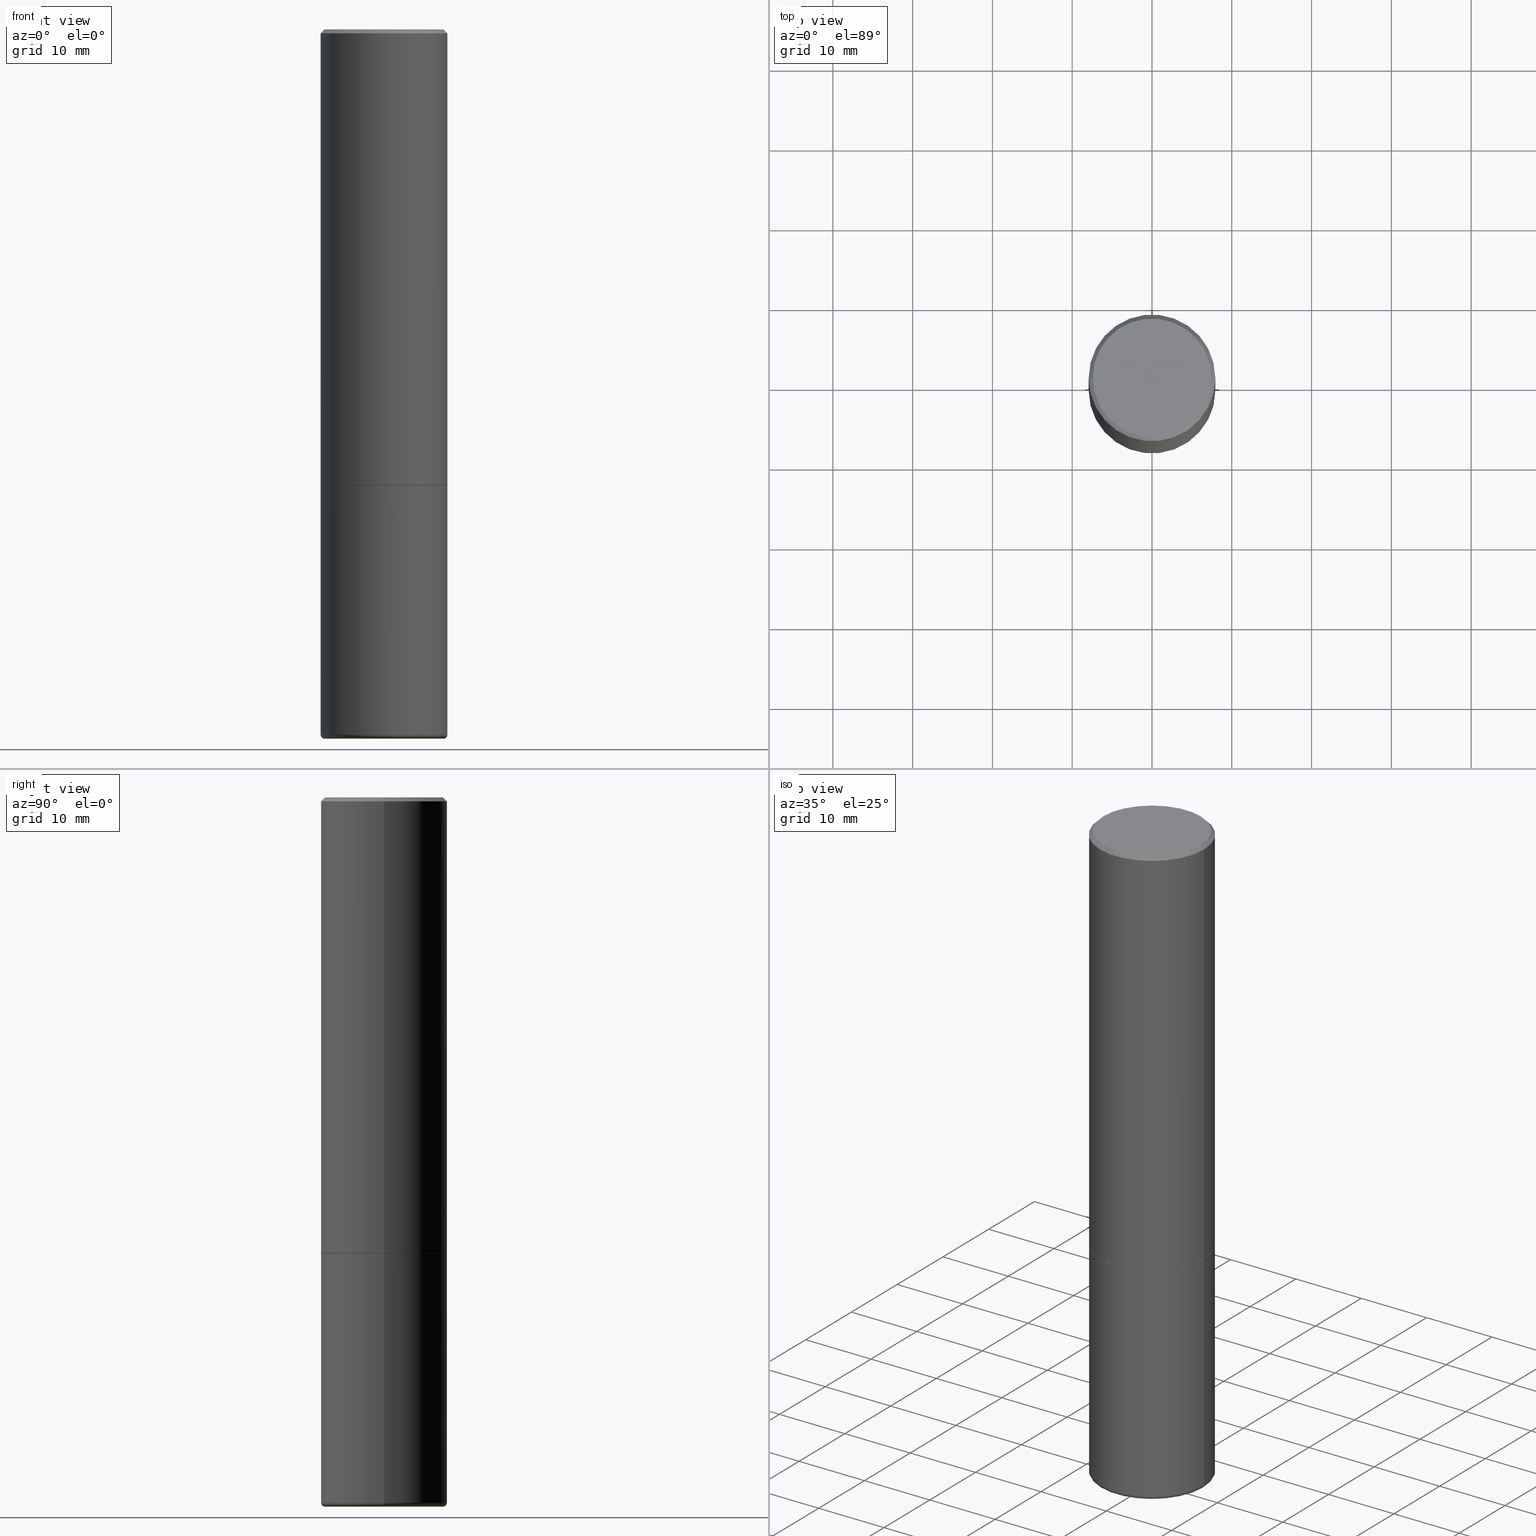
[diagram: canonical four-view strip — front | top / right | iso, engineering-drawing reading convention]
A machine part, canonical four-view strip (front | top / right | iso — engineering-drawing reading convention). The complete STEP part file that produces these views, byte-faithful:
ISO-10303-21;
HEADER;
FILE_DESCRIPTION (( 'STEP AP203' ),
    '1' );
FILE_NAME ('38138.STEP',
    '2023-03-22T20:22:44',
    ( '' ),
    ( '' ),
    'SwSTEP 2.0',
    'SolidWorks 2022',
    '' );
FILE_SCHEMA (( 'CONFIG_CONTROL_DESIGN' ));
ENDSEC;

DATA;
#1 = DIRECTION ( 'NONE',  ( 1.000000000000000000, -6.982962677686265133E-15, 0.000000000000000000 ) ) ;
#2 = CIRCLE ( 'NONE', #252, 0.3124999999999998335 ) ;
#3 = COORDINATED_UNIVERSAL_TIME_OFFSET ( 5, 0, .BEHIND. ) ;
#4 = ORIENTED_EDGE ( 'NONE', *, *, #427, .T. ) ;
#5 = CARTESIAN_POINT ( 'NONE',  ( -0.2924999999999998157, 2.077431396611662611E-15, 4.268512490086005323E-18 ) ) ;
#6 = DIRECTION ( 'NONE',  ( 1.000000000000000000, -6.982962677686265922E-15, 0.000000000000000000 ) ) ;
#7 = ORIENTED_EDGE ( 'NONE', *, *, #155, .T. ) ;
#8 = DIRECTION ( 'NONE',  ( -2.445468806185136597E-29, 3.491481338843145583E-15, 1.000000000000000000 ) ) ;
#9 = APPLICATION_PROTOCOL_DEFINITION ( 'international standard', 'config_control_design', 1994, #253 ) ;
#10 = EDGE_LOOP ( 'NONE', ( #144, #235, #342, #345 ) ) ;
#11 = ORIENTED_EDGE ( 'NONE', *, *, #48, .F. ) ;
#12 = DIRECTION ( 'NONE',  ( 1.000000000000000000, -6.982962677686265133E-15, 0.000000000000000000 ) ) ;
#13 = CLOSED_SHELL ( 'NONE', ( #295, #333, #381, #418, #366, #79, #195 ) ) ;
#14 = AXIS2_PLACEMENT_3D ( 'NONE', #222, #301, #438 ) ;
#15 = PERSON_AND_ORGANIZATION_ROLE ( 'classification_officer' ) ;
#16 = LINE ( 'NONE', #78, #64 ) ;
#17 = CARTESIAN_POINT ( 'NONE',  ( 0.3125000000000000000, -1.003800884917403364E-14, -2.249999999999999556 ) ) ;
#18 = EDGE_CURVE ( 'NONE', #414, #67, #16, .T. ) ;
#19 = CC_DESIGN_APPROVAL ( #299, ( #247 ) ) ;
#20 = EDGE_LOOP ( 'NONE', ( #237, #208, #104, #359 ) ) ;
#21 = DATE_AND_TIME ( #217, #196 ) ;
#22 = AXIS2_PLACEMENT_3D ( 'NONE', #197, #89, #226 ) ;
#23 = APPROVAL_DATE_TIME ( #327, #299 ) ;
#24 = DIRECTION ( 'NONE',  ( 1.000000000000000000, -6.982962677686266711E-15, 0.000000000000000000 ) ) ;
#25 = DIRECTION ( 'NONE',  ( -2.445468806185136597E-29, 3.491481338843145583E-15, 1.000000000000000000 ) ) ;
#26 = CARTESIAN_POINT ( 'NONE',  ( 0.000000000000000000, 0.000000000000000000, 0.000000000000000000 ) ) ;
#27 = AXIS2_PLACEMENT_3D ( 'NONE', #401, #263, #192 ) ;
#28 = CARTESIAN_POINT ( 'NONE',  ( 0.3114999999999999991, -1.003102588649634920E-14, -2.249999999999999556 ) ) ;
#29 = CYLINDRICAL_SURFACE ( 'NONE', #59, 0.3124999999999998890 ) ;
#30 = FACE_OUTER_BOUND ( 'NONE', #65, .T. ) ;
#31 = CLOSED_SHELL ( 'NONE', ( #122, #315, #40, #290, #395, #101, #52, #375 ) ) ;
#32 = AXIS2_PLACEMENT_3D ( 'NONE', #80, #360, #60 ) ;
#33 = MECHANICAL_CONTEXT ( 'NONE', #253, 'mechanical' ) ;
#34 = DIRECTION ( 'NONE',  ( 0.000000000000000000, 0.000000000000000000, 1.000000000000000000 ) ) ;
#35 = EDGE_LOOP ( 'NONE', ( #347, #7, #75, #212 ) ) ;
#36 = DIRECTION ( 'NONE',  ( -1.000000000000000000, 6.982962677686265133E-15, 0.000000000000000000 ) ) ;
#37 =( CONVERSION_BASED_UNIT ( 'INCH', #231 ) LENGTH_UNIT ( ) NAMED_UNIT ( #270 ) );
#38 = EDGE_LOOP ( 'NONE', ( #230, #421, #100, #390 ) ) ;
#39 = VECTOR ( 'NONE', #368, 39.37007874015748143 ) ;
#40 = ADVANCED_FACE ( 'NONE', ( #279 ), #278, .T. ) ;
#41 = PLANE ( 'NONE',  #405 ) ;
#42 = PERSON ( 'UNSPECIFIED', 'UNSPECIFIED', 'UNSPECIFIED', ('UNSPECIFIED'), ('UNSPECIFIED'), ('UNSPECIFIED') ) ;
#43 = ORIENTED_EDGE ( 'NONE', *, *, #409, .F. ) ;
#44 = CARTESIAN_POINT ( 'NONE',  ( 0.3125000000000000000, -1.003451736783519063E-14, -2.248999999999999222 ) ) ;
#45 = VERTEX_POINT ( 'NONE', #168 ) ;
#46 = DIRECTION ( 'NONE',  ( 1.000000000000000000, -6.982962677686269077E-15, 0.000000000000000000 ) ) ;
#47 = DIRECTION ( 'NONE',  ( -2.445468806185136877E-29, 3.491481338843145188E-15, 1.000000000000000000 ) ) ;
#48 = EDGE_CURVE ( 'NONE', #440, #241, #97, .T. ) ;
#49 = LINE ( 'NONE', #189, #183 ) ;
#50 = CONICAL_SURFACE ( 'NONE', #84, 751.2258538476803551, 1.518436449235074592 ) ;
#51 = PERSON_AND_ORGANIZATION_ROLE ( 'design_supplier' ) ;
#52 = ADVANCED_FACE ( 'NONE', ( #349 ), #136, .F. ) ;
#53 = AXIS2_PLACEMENT_3D ( 'NONE', #154, #215, #46 ) ;
#54 = DIRECTION ( 'NONE',  ( -2.445468806185136597E-29, 3.491481338843145583E-15, 1.000000000000000000 ) ) ;
#55 = UNCERTAINTY_MEASURE_WITH_UNIT (LENGTH_MEASURE( 1.000000000000000082E-05 ), #37, 'distance_accuracy_value', 'NONE');
#56 = DIRECTION ( 'NONE',  ( -0.7071067811864267805, 7.493145998869918709E-15, 0.7071067811866682540 ) ) ;
#57 = CARTESIAN_POINT ( 'NONE',  ( 8.510298474124427942E-29, -1.215045075825074504E-14, -3.480027409304908392 ) ) ;
#58 = DIRECTION ( 'NONE',  ( -2.445468806185136597E-29, 3.491481338843145583E-15, 1.000000000000000000 ) ) ;
#59 = AXIS2_PLACEMENT_3D ( 'NONE', #161, #406, #373 ) ;
#60 = DIRECTION ( 'NONE',  ( 1.000000000000000000, -6.982962677686236734E-15, 0.000000000000000000 ) ) ;
#61 = FACE_OUTER_BOUND ( 'NONE', #20, .T. ) ;
#62 = CARTESIAN_POINT ( 'NONE',  ( 0.3124999999999998890, -2.182175836776957558E-15, 1.523805242436229235E-29 ) ) ;
#63 = VERTEX_POINT ( 'NONE', #5 ) ;
#64 = VECTOR ( 'NONE', #47, 39.37007874015748143 ) ;
#65 = EDGE_LOOP ( 'NONE', ( #338, #107, #352, #275 ) ) ;
#66 = CIRCLE ( 'NONE', #135, 0.01999999999999971939 ) ;
#67 = VERTEX_POINT ( 'NONE', #91 ) ;
#68 = EDGE_LOOP ( 'NONE', ( #178, #383, #392, #174 ) ) ;
#69 = PRODUCT_DEFINITION ( 'UNKNOWN', '', #247, #93 ) ;
#70 = DIRECTION ( 'NONE',  ( -2.445468806185136597E-29, 3.491481338843145583E-15, 1.000000000000000000 ) ) ;
#71 = EDGE_CURVE ( 'NONE', #63, #72, #242, .T. ) ;
#72 = VERTEX_POINT ( 'NONE', #143 ) ;
#73 = CARTESIAN_POINT ( 'NONE',  ( 5.502304813916556222E-29, -7.855833012397076871E-15, -2.249999999999999556 ) ) ;
#74 = DIRECTION ( 'NONE',  ( 1.000000000000000000, 0.000000000000000000, 0.000000000000000000 ) ) ;
#75 = ORIENTED_EDGE ( 'NONE', *, *, #211, .F. ) ;
#76 = CARTESIAN_POINT ( 'NONE',  ( 5.502304813916556222E-29, -7.855833012397076871E-15, -2.249999999999999556 ) ) ;
#77 = CALENDAR_DATE ( 2023, 22, 3 ) ;
#78 = CARTESIAN_POINT ( 'NONE',  ( -0.3124999999999998890, 2.220446049250312292E-15, -1.537167215704657391E-29 ) ) ;
#79 = ADVANCED_FACE ( 'NONE', ( #179 ), #326, .T. ) ;
#80 = CARTESIAN_POINT ( 'NONE',  ( 0.2925000000000000377, -1.419296734147397679E-14, -3.480027409304908392 ) ) ;
#81 = CARTESIAN_POINT ( 'NONE',  ( -0.3124999999999998890, 2.220446049250312292E-15, -1.537167215704657391E-29 ) ) ;
#82 = AXIS2_PLACEMENT_3D ( 'NONE', #73, #105, #316 ) ;
#83 = APPROVAL_ROLE ( '' ) ;
#84 = AXIS2_PLACEMENT_3D ( 'NONE', #329, #244, #423 ) ;
#85 = VECTOR ( 'NONE', #213, 39.37007874015748854 ) ;
#86 = CARTESIAN_POINT ( 'NONE',  ( 8.510298474124427942E-29, -1.215045075825074504E-14, -3.480027409304908392 ) ) ;
#87 = DIRECTION ( 'NONE',  ( 7.105427357601001859E-15, 1.000000000000000000, -3.491481338843145583E-15 ) ) ;
#88 = CYLINDRICAL_SURFACE ( 'NONE', #281, 0.3124999999999998890 ) ;
#89 = DIRECTION ( 'NONE',  ( -2.445468806185136597E-29, 3.491481338843145583E-15, 1.000000000000000000 ) ) ;
#90 = CIRCLE ( 'NONE', #339, 0.2924999999999998157 ) ;
#91 = CARTESIAN_POINT ( 'NONE',  ( -0.3125000000000000000, -7.782695836073597873E-15, -2.249999999999999556 ) ) ;
#92 = DIRECTION ( 'NONE',  ( 1.000000000000000000, -6.982962677686269077E-15, 0.000000000000000000 ) ) ;
#93 = DESIGN_CONTEXT ( 'detailed design', #330, 'design' ) ;
#94 = FACE_OUTER_BOUND ( 'NONE', #35, .T. ) ;
#95 = DIRECTION ( 'NONE',  ( 1.000000000000000000, -6.982962677686266711E-15, 4.876067333457692840E-29 ) ) ;
#96 = ORIENTED_EDGE ( 'NONE', *, *, #283, .T. ) ;
#97 = CIRCLE ( 'NONE', #280, 0.2914532808751413295 ) ;
#98 = DIRECTION ( 'NONE',  ( -2.445468806185136597E-29, 3.491481338843145583E-15, 1.000000000000000000 ) ) ;
#99 = ORIENTED_EDGE ( 'NONE', *, *, #224, .T. ) ;
#100 = ORIENTED_EDGE ( 'NONE', *, *, #71, .T. ) ;
#101 = ADVANCED_FACE ( 'NONE', ( #246 ), #220, .T. ) ;
#102 = CARTESIAN_POINT ( 'NONE',  ( 5.502304813916556222E-29, -7.855833012397076871E-15, -2.249999999999999556 ) ) ;
#103 =( NAMED_UNIT ( * ) SI_UNIT ( $, .STERADIAN. ) SOLID_ANGLE_UNIT ( ) );
#104 = ORIENTED_EDGE ( 'NONE', *, *, #224, .F. ) ;
#105 = DIRECTION ( 'NONE',  ( -2.445468806185136597E-29, 3.491481338843145583E-15, 1.000000000000000000 ) ) ;
#106 = CARTESIAN_POINT ( 'NONE',  ( -0.3124999999999997224, -7.782695836073599450E-15, -3.480027409304908392 ) ) ;
#107 = ORIENTED_EDGE ( 'NONE', *, *, #397, .T. ) ;
#108 = EDGE_LOOP ( 'NONE', ( #355, #96, #272, #303 ) ) ;
#109 = CARTESIAN_POINT ( 'NONE',  ( 0.2914532808751413295, -1.425539206859132982E-14, -3.499999999999999112 ) ) ;
#110 = AXIS2_PLACEMENT_3D ( 'NONE', #57, #25, #429 ) ;
#111 = EDGE_CURVE ( 'NONE', #382, #440, #191, .T. ) ;
#112 = PERSON_AND_ORGANIZATION ( #42, #400 ) ;
#113 = VERTEX_POINT ( 'NONE', #384 ) ;
#114 = DIRECTION ( 'NONE',  ( 1.000000000000000000, -6.982962677686265922E-15, 0.000000000000000000 ) ) ;
#115 = CC_DESIGN_APPROVAL ( #314, ( #164 ) ) ;
#116 = CARTESIAN_POINT ( 'NONE',  ( 5.502304813916556222E-29, -7.855833012397075293E-15, -2.249999999999999556 ) ) ;
#117 = CC_DESIGN_PERSON_AND_ORGANIZATION_ASSIGNMENT ( #112, #389, ( #69 ) ) ;
#118 = CONICAL_SURFACE ( 'NONE', #82, 0.3114999999999999991, 0.7853981633972775267 ) ;
#119 = COORDINATED_UNIVERSAL_TIME_OFFSET ( 5, 0, .BEHIND. ) ;
#120 = PRODUCT_DEFINITION_SHAPE ( 'NONE', 'NONE',  #69 ) ;
#121 = AXIS2_PLACEMENT_3D ( 'NONE', #433, #374, #36 ) ;
#122 = ADVANCED_FACE ( 'NONE', ( #393 ), #118, .T. ) ;
#123 = AXIS2_PLACEMENT_3D ( 'NONE', #116, #8, #399 ) ;
#124 = AXIS2_PLACEMENT_3D ( 'NONE', #140, #204, #176 ) ;
#125 = DIRECTION ( 'NONE',  ( 2.445468806185136597E-29, -3.491481338843145583E-15, -1.000000000000000000 ) ) ;
#126 = FACE_OUTER_BOUND ( 'NONE', #38, .T. ) ;
#127 = FACE_OUTER_BOUND ( 'NONE', #243, .T. ) ;
#128 = DIRECTION ( 'NONE',  ( -2.445468806185136597E-29, 3.491481338843145583E-15, 1.000000000000000000 ) ) ;
#129 = AXIS2_PLACEMENT_3D ( 'NONE', #76, #182, #291 ) ;
#130 = EDGE_CURVE ( 'NONE', #177, #187, #420, .T. ) ;
#131 = CYLINDRICAL_SURFACE ( 'NONE', #146, 0.3124999999999998890 ) ;
#132 = CARTESIAN_POINT ( 'NONE',  ( 2.182175836777013173E-15, 0.3124999999999921729, -2.250000000000000444 ) ) ;
#133 = ORIENTED_EDGE ( 'NONE', *, *, #356, .F. ) ;
#134 =( LENGTH_UNIT ( ) NAMED_UNIT ( * ) SI_UNIT ( $, .METRE. ) );
#135 = AXIS2_PLACEMENT_3D ( 'NONE', #334, #87, #159 ) ;
#136 = PLANE ( 'NONE',  #157 ) ;
#137 = FACE_OUTER_BOUND ( 'NONE', #207, .T. ) ;
#138 = EDGE_LOOP ( 'NONE', ( #318, #408, #313 ) ) ;
#139 = DIRECTION ( 'NONE',  ( -2.445468806185136877E-29, 3.491481338843145188E-15, 1.000000000000000000 ) ) ;
#140 = CARTESIAN_POINT ( 'NONE',  ( 8.559140821647976968E-29, -1.222018468595100619E-14, -3.499999999999999112 ) ) ;
#141 = VERTEX_POINT ( 'NONE', #17 ) ;
#142 = ORIENTED_EDGE ( 'NONE', *, *, #165, .F. ) ;
#143 = CARTESIAN_POINT ( 'NONE',  ( -0.3124999999999998335, 2.112346210000093866E-15, -0.02000000000000001776 ) ) ;
#144 = ORIENTED_EDGE ( 'NONE', *, *, #404, .F. ) ;
#145 = FACE_OUTER_BOUND ( 'NONE', #138, .T. ) ;
#146 = AXIS2_PLACEMENT_3D ( 'NONE', #402, #229, #432 ) ;
#147 = CIRCLE ( 'NONE', #203, 0.2924999999999998157 ) ;
#148 = PERSON_AND_ORGANIZATION ( #42, #400 ) ;
#149 = DIRECTION ( 'NONE',  ( -2.445468806185136597E-29, 3.491481338843145583E-15, 1.000000000000000000 ) ) ;
#150 = ORIENTED_EDGE ( 'NONE', *, *, #435, .T. ) ;
#151 = EDGE_CURVE ( 'NONE', #67, #141, #201, .T. ) ;
#152 = APPROVAL_STATUS ( 'not_yet_approved' ) ;
#153 = PRODUCT ( '38138', '38138', '', ( #33 ) ) ;
#154 = CARTESIAN_POINT ( 'NONE',  ( 8.510298474124427942E-29, -1.215045075825074504E-14, -3.480027409304908392 ) ) ;
#155 = EDGE_CURVE ( 'NONE', #187, #72, #210, .T. ) ;
#156 = DIRECTION ( 'NONE',  ( 2.445468806185136597E-29, -3.491481338843145583E-15, -1.000000000000000000 ) ) ;
#157 = AXIS2_PLACEMENT_3D ( 'NONE', #102, #269, #172 ) ;
#158 = AXIS2_PLACEMENT_3D ( 'NONE', #336, #293, #92 ) ;
#159 = DIRECTION ( 'NONE',  ( -1.000000000000000000, 7.105427357601025525E-15, 0.000000000000000000 ) ) ;
#160 = DIRECTION ( 'NONE',  ( -1.000000000000000000, 6.982962677686266711E-15, 0.000000000000000000 ) ) ;
#161 = CARTESIAN_POINT ( 'NONE',  ( 0.000000000000000000, 0.000000000000000000, 0.000000000000000000 ) ) ;
#162 = DIRECTION ( 'NONE',  ( 1.000000000000000000, -6.982962677686266711E-15, 4.876067333457692840E-29 ) ) ;
#163 = DIRECTION ( 'NONE',  ( -1.000000000000000000, 6.982962677686265922E-15, -4.876176775795935793E-29 ) ) ;
#164 = SECURITY_CLASSIFICATION ( '', '', #358 ) ;
#165 = EDGE_CURVE ( 'NONE', #268, #113, #232, .T. ) ;
#166 = DIRECTION ( 'NONE',  ( -2.445468806185136597E-29, 3.491481338843145583E-15, 1.000000000000000000 ) ) ;
#167 = EDGE_LOOP ( 'NONE', ( #410, #150 ) ) ;
#168 = CARTESIAN_POINT ( 'NONE',  ( 0.2924999999999998157, -2.110215457714318748E-15, 4.268512490114932791E-18 ) ) ;
#169 = DIRECTION ( 'NONE',  ( 2.438088387897960049E-29, -3.491481338843145188E-15, -1.000000000000000000 ) ) ;
#170 = EDGE_LOOP ( 'NONE', ( #142, #43 ) ) ;
#171 = VECTOR ( 'NONE', #357, 39.37007874015748143 ) ;
#172 = DIRECTION ( 'NONE',  ( 1.000000000000000000, -6.982962677686265922E-15, 4.876176775795935793E-29 ) ) ;
#173 = COORDINATED_UNIVERSAL_TIME_OFFSET ( 5, 0, .BEHIND. ) ;
#174 = ORIENTED_EDGE ( 'NONE', *, *, #397, .F. ) ;
#175 = CARTESIAN_POINT ( 'NONE',  ( -0.3125000000000000000, -1.740639529667232739E-15, -2.248999999999999222 ) ) ;
#176 = DIRECTION ( 'NONE',  ( 1.000000000000000000, -6.982962677686265133E-15, 0.000000000000000000 ) ) ;
#177 = VERTEX_POINT ( 'NONE', #44 ) ;
#178 = ORIENTED_EDGE ( 'NONE', *, *, #239, .F. ) ;
#179 = FACE_OUTER_BOUND ( 'NONE', #10, .T. ) ;
#180 = LOCAL_TIME ( 16, 22, 44.00000000000000000, #173 ) ;
#181 = ORIENTED_EDGE ( 'NONE', *, *, #151, .T. ) ;
#182 = DIRECTION ( 'NONE',  ( -2.445468806185136597E-29, 3.491481338843145583E-15, 1.000000000000000000 ) ) ;
#183 = VECTOR ( 'NONE', #221, 39.37007874015748143 ) ;
#184 = ORIENTED_EDGE ( 'NONE', *, *, #190, .T. ) ;
#185 = MANIFOLD_SOLID_BREP ( 'Body-Move/Copy2[1]', #13 ) ;
#186 = EDGE_CURVE ( 'NONE', #268, #177, #49, .T. ) ;
#187 = VERTEX_POINT ( 'NONE', #175 ) ;
#188 = AXIS2_PLACEMENT_3D ( 'NONE', #332, #149, #12 ) ;
#189 = CARTESIAN_POINT ( 'NONE',  ( 0.3114999999999999991, -1.003102588649634920E-14, -2.249999999999999556 ) ) ;
#190 = EDGE_CURVE ( 'NONE', #382, #241, #285, .T. ) ;
#191 = LINE ( 'NONE', #428, #85 ) ;
#192 = DIRECTION ( 'NONE',  ( 1.000000000000000000, -6.982962677686269077E-15, 0.000000000000000000 ) ) ;
#193 = VECTOR ( 'NONE', #365, 39.37007874015748854 ) ;
#194 = LINE ( 'NONE', #434, #351 ) ;
#195 = ADVANCED_FACE ( 'NONE', ( #145 ), #50, .F. ) ;
#196 = LOCAL_TIME ( 16, 22, 44.00000000000000000, #398 ) ;
#197 = CARTESIAN_POINT ( 'NONE',  ( 4.890937612370276662E-31, -6.982962677686296539E-17, -0.02000000000000001776 ) ) ;
#198 = CARTESIAN_POINT ( 'NONE',  ( 4.890937612370276662E-31, -6.982962677686296539E-17, -0.02000000000000001776 ) ) ;
#199 = ORIENTED_EDGE ( 'NONE', *, *, #255, .F. ) ;
#200 = DIRECTION ( 'NONE',  ( -1.000000000000000000, 6.982962677686265133E-15, 0.000000000000000000 ) ) ;
#201 = CIRCLE ( 'NONE', #188, 0.3125000000000000000 ) ;
#202 = ORIENTED_EDGE ( 'NONE', *, *, #111, .F. ) ;
#203 = AXIS2_PLACEMENT_3D ( 'NONE', #302, #166, #95 ) ;
#204 = DIRECTION ( 'NONE',  ( -2.445468806185136597E-29, 3.491481338843145583E-15, 1.000000000000000000 ) ) ;
#205 = ORIENTED_EDGE ( 'NONE', *, *, #404, .T. ) ;
#206 = DATE_AND_TIME ( #77, #305 ) ;
#207 = EDGE_LOOP ( 'NONE', ( #99, #181 ) ) ;
#208 = ORIENTED_EDGE ( 'NONE', *, *, #18, .T. ) ;
#209 = APPROVAL_ROLE ( '' ) ;
#210 = LINE ( 'NONE', #81, #171 ) ;
#211 = EDGE_CURVE ( 'NONE', #265, #72, #2, .T. ) ;
#212 = ORIENTED_EDGE ( 'NONE', *, *, #325, .F. ) ;
#213 = DIRECTION ( 'NONE',  ( -0.9986295347545742773, 6.790662755453670044E-15, -0.05233595624293597981 ) ) ;
#214 = ORIENTED_EDGE ( 'NONE', *, *, #151, .F. ) ;
#215 = DIRECTION ( 'NONE',  ( -2.445468806185136597E-29, 3.491481338843145583E-15, 1.000000000000000000 ) ) ;
#216 = CIRCLE ( 'NONE', #27, 0.3125000000000000000 ) ;
#217 = CALENDAR_DATE ( 2023, 22, 3 ) ;
#218 = CC_DESIGN_DATE_AND_TIME_ASSIGNMENT ( #206, #346, ( #69 ) ) ;
#219 = CARTESIAN_POINT ( 'NONE',  ( 5.038680535193089963E-19, -1.216685433629869943E-14, -3.484725580784579169 ) ) ;
#220 = CONICAL_SURFACE ( 'NONE', #129, 0.3114999999999999991, 0.7853981633972775267 ) ;
#221 = DIRECTION ( 'NONE',  ( 0.7071067811864267805, -2.468850131080992517E-15, 0.7071067811866682540 ) ) ;
#222 = CARTESIAN_POINT ( 'NONE',  ( 0.000000000000000000, 0.000000000000000000, 0.000000000000000000 ) ) ;
#223 = CARTESIAN_POINT ( 'NONE',  ( -1.043851414335219820E-46, 1.490343170380447200E-32, 4.268512490100411279E-18 ) ) ;
#224 = EDGE_CURVE ( 'NONE', #141, #67, #425, .T. ) ;
#225 = AXIS2_PLACEMENT_3D ( 'NONE', #198, #125, #200 ) ;
#226 = DIRECTION ( 'NONE',  ( 1.000000000000000000, -6.982962677686266711E-15, 0.000000000000000000 ) ) ;
#227 = PRODUCT_RELATED_PRODUCT_CATEGORY ( 'detail', '', ( #153 ) ) ;
#228 = EDGE_CURVE ( 'NONE', #414, #308, #260, .T. ) ;
#229 = DIRECTION ( 'NONE',  ( -2.445468806185136597E-29, 3.491481338843145583E-15, 1.000000000000000000 ) ) ;
#230 = ORIENTED_EDGE ( 'NONE', *, *, #283, .F. ) ;
#231 = LENGTH_MEASURE_WITH_UNIT ( LENGTH_MEASURE( 0.02539999999999999897 ), #134 );
#232 = CIRCLE ( 'NONE', #307, 0.3114999999999999991 ) ;
#233 = COORDINATED_UNIVERSAL_TIME_OFFSET ( 5, 0, .BEHIND. ) ;
#234 = ORIENTED_EDGE ( 'NONE', *, *, #245, .T. ) ;
#235 = ORIENTED_EDGE ( 'NONE', *, *, #48, .T. ) ;
#236 = DATE_AND_TIME ( #412, #264 ) ;
#237 = ORIENTED_EDGE ( 'NONE', *, *, #356, .T. ) ;
#238 = DIRECTION ( 'NONE',  ( -2.445468806185136597E-29, 3.491481338843145583E-15, 1.000000000000000000 ) ) ;
#239 = EDGE_CURVE ( 'NONE', #113, #187, #276, .T. ) ;
#240 = EDGE_LOOP ( 'NONE', ( #372, #377, #234, #214 ) ) ;
#241 = VERTEX_POINT ( 'NONE', #109 ) ;
#242 = LINE ( 'NONE', #388, #193 ) ;
#243 = EDGE_LOOP ( 'NONE', ( #202, #184, #11 ) ) ;
#244 = DIRECTION ( 'NONE',  ( 2.445468806185136597E-29, -3.491481338843145583E-15, -1.000000000000000000 ) ) ;
#245 = EDGE_CURVE ( 'NONE', #308, #141, #391, .T. ) ;
#246 = FACE_OUTER_BOUND ( 'NONE', #68, .T. ) ;
#247 = PRODUCT_DEFINITION_FORMATION_WITH_SPECIFIED_SOURCE ( 'ANY', '', #153, .NOT_KNOWN. ) ;
#248 = DATE_TIME_ROLE ( 'classification_date' ) ;
#249 = AXIS2_PLACEMENT_3D ( 'NONE', #350, #98, #6 ) ;
#250 = SHAPE_DEFINITION_REPRESENTATION ( #120, #380 ) ;
#251 = DIRECTION ( 'NONE',  ( 0.9986295347545742773, -7.033825938271996334E-15, -0.05233595624293597981 ) ) ;
#252 = AXIS2_PLACEMENT_3D ( 'NONE', #309, #274, #24 ) ;
#253 = APPLICATION_CONTEXT ( 'configuration controlled 3d designs of mechanical parts and assemblies' ) ;
#254 = CIRCLE ( 'NONE', #124, 0.2914532808751413295 ) ;
#255 = EDGE_CURVE ( 'NONE', #241, #308, #319, .T. ) ;
#256 = CARTESIAN_POINT ( 'NONE',  ( 2.042516583223231356E-15, 0.2924999999999998157, -1.019124035366569212E-15 ) ) ;
#257 = DIRECTION ( 'NONE',  ( 0.7071067811865469066, -7.319954787623252890E-15, -0.7071067811865479058 ) ) ;
#258 = EDGE_CURVE ( 'NONE', #72, #265, #294, .T. ) ;
#259 = DIRECTION ( 'NONE',  ( 1.000000000000000000, -6.982962677686266711E-15, 4.876176775795935232E-29 ) ) ;
#260 = CIRCLE ( 'NONE', #53, 0.3124999999999997224 ) ;
#261 = CARTESIAN_POINT ( 'NONE',  ( 0.3124999999999997224, -1.433262659502770023E-14, -3.480027409304908392 ) ) ;
#262 = CC_DESIGN_DATE_AND_TIME_ASSIGNMENT ( #21, #248, ( #164 ) ) ;
#263 = DIRECTION ( 'NONE',  ( -2.445468806185136597E-29, 3.491481338843145583E-15, 1.000000000000000000 ) ) ;
#264 = LOCAL_TIME ( 16, 22, 44.00000000000000000, #3 ) ;
#265 = VERTEX_POINT ( 'NONE', #407 ) ;
#266 = APPLICATION_PROTOCOL_DEFINITION ( 'international standard', 'config_control_design', 1994, #330 ) ;
#267 = VECTOR ( 'NONE', #56, 39.37007874015748143 ) ;
#268 = VERTEX_POINT ( 'NONE', #28 ) ;
#269 = DIRECTION ( 'NONE',  ( -2.438088387897960049E-29, 3.491481338843145188E-15, 1.000000000000000000 ) ) ;
#270 = DIMENSIONAL_EXPONENTS ( 1.000000000000000000, 0.000000000000000000, 0.000000000000000000, 0.000000000000000000, 0.000000000000000000, 0.000000000000000000, 0.000000000000000000 ) ;
#271 = PERSON_AND_ORGANIZATION ( #42, #400 ) ;
#272 = ORIENTED_EDGE ( 'NONE', *, *, #211, .T. ) ;
#273 = EDGE_CURVE ( 'NONE', #63, #45, #90, .T. ) ;
#274 = DIRECTION ( 'NONE',  ( -2.445468806185136597E-29, 3.491481338843145583E-15, 1.000000000000000000 ) ) ;
#275 = ORIENTED_EDGE ( 'NONE', *, *, #258, .F. ) ;
#276 = LINE ( 'NONE', #417, #267 ) ;
#277 = APPROVAL_ROLE ( '' ) ;
#278 = CONICAL_SURFACE ( 'NONE', #121, 0.3124999999999998335, 0.7853981633974476129 ) ;
#279 = FACE_OUTER_BOUND ( 'NONE', #108, .T. ) ;
#280 = AXIS2_PLACEMENT_3D ( 'NONE', #306, #70, #1 ) ;
#281 = AXIS2_PLACEMENT_3D ( 'NONE', #26, #58, #259 ) ;
#282 = DIRECTION ( 'NONE',  ( -2.445468806185136597E-29, 3.491481338843145583E-15, 1.000000000000000000 ) ) ;
#283 = EDGE_CURVE ( 'NONE', #45, #265, #194, .T. ) ;
#284 = APPROVAL_PERSON_ORGANIZATION ( #362, #314, #83 ) ;
#285 = LINE ( 'NONE', #219, #437 ) ;
#286 = PERSON_AND_ORGANIZATION ( #42, #400 ) ;
#287 = CC_DESIGN_PERSON_AND_ORGANIZATION_ASSIGNMENT ( #304, #439, ( #153 ) ) ;
#288 = TOROIDAL_SURFACE ( 'NONE', #110, 0.2925000000000000377, 0.01999999999999971939 ) ;
#289 = APPROVAL_DATE_TIME ( #323, #314 ) ;
#290 = ADVANCED_FACE ( 'NONE', ( #126 ), #300, .T. ) ;
#291 = DIRECTION ( 'NONE',  ( 1.000000000000000000, -6.982962677686265922E-15, 0.000000000000000000 ) ) ;
#292 = APPROVAL_PERSON_ORGANIZATION ( #271, #299, #209 ) ;
#293 = DIRECTION ( 'NONE',  ( -2.445468806185136597E-29, 3.491481338843145583E-15, 1.000000000000000000 ) ) ;
#294 = CIRCLE ( 'NONE', #22, 0.3124999999999998335 ) ;
#295 = ADVANCED_FACE ( 'NONE', ( #127 ), #378, .F. ) ;
#296 = CYLINDRICAL_SURFACE ( 'NONE', #14, 0.3124999999999998890 ) ;
#297 = FACE_OUTER_BOUND ( 'NONE', #240, .T. ) ;
#298 = DIRECTION ( 'NONE',  ( -1.000000000000000000, 6.982962677686265922E-15, -4.876176775795935793E-29 ) ) ;
#299 = APPROVAL ( #341, 'UNSPECIFIED' ) ;
#300 = CONICAL_SURFACE ( 'NONE', #225, 0.3124999999999998335, 0.7853981633974476129 ) ;
#301 = DIRECTION ( 'NONE',  ( -2.445468806185136597E-29, 3.491481338843145583E-15, 1.000000000000000000 ) ) ;
#302 = CARTESIAN_POINT ( 'NONE',  ( -1.043851414335219820E-46, 1.490343170380447200E-32, 4.268512490100411279E-18 ) ) ;
#303 = ORIENTED_EDGE ( 'NONE', *, *, #71, .F. ) ;
#304 = PERSON_AND_ORGANIZATION ( #42, #400 ) ;
#305 = LOCAL_TIME ( 16, 22, 44.00000000000000000, #233 ) ;
#306 = CARTESIAN_POINT ( 'NONE',  ( 8.559140821647976968E-29, -1.222018468595100619E-14, -3.499999999999999112 ) ) ;
#307 = AXIS2_PLACEMENT_3D ( 'NONE', #353, #54, #114 ) ;
#308 = VERTEX_POINT ( 'NONE', #261 ) ;
#309 = CARTESIAN_POINT ( 'NONE',  ( 4.890937612370276662E-31, -6.982962677686296539E-17, -0.02000000000000001776 ) ) ;
#310 = APPROVAL ( #354, 'UNSPECIFIED' ) ;
#311 = CARTESIAN_POINT ( 'NONE',  ( -0.2914532808751413295, -1.003964463977932083E-14, -3.499999999999999112 ) ) ;
#312 = ORIENTED_EDGE ( 'NONE', *, *, #239, .T. ) ;
#313 = ORIENTED_EDGE ( 'NONE', *, *, #427, .F. ) ;
#314 = APPROVAL ( #152, 'UNSPECIFIED' ) ;
#315 = ADVANCED_FACE ( 'NONE', ( #94 ), #131, .T. ) ;
#316 = DIRECTION ( 'NONE',  ( 1.000000000000000000, -6.982962677686265922E-15, 0.000000000000000000 ) ) ;
#317 = PERSON_AND_ORGANIZATION_ROLE ( 'creator' ) ;
#318 = ORIENTED_EDGE ( 'NONE', *, *, #190, .F. ) ;
#319 = CIRCLE ( 'NONE', #32, 0.01999999999999971939 ) ;
#320 = AXIS2_PLACEMENT_3D ( 'NONE', #344, #34, #74 ) ;
#321 = CARTESIAN_POINT ( 'NONE',  ( 0.3124999999999998890, -2.182175836776957558E-15, 1.523805242436229235E-29 ) ) ;
#322 = CC_DESIGN_PERSON_AND_ORGANIZATION_ASSIGNMENT ( #286, #51, ( #247 ) ) ;
#323 = DATE_AND_TIME ( #426, #367 ) ;
#324 = CALENDAR_DATE ( 2023, 22, 3 ) ;
#325 = EDGE_CURVE ( 'NONE', #177, #265, #376, .T. ) ;
#326 = TOROIDAL_SURFACE ( 'NONE', #385, 0.2925000000000000377, 0.01999999999999971939 ) ;
#327 = DATE_AND_TIME ( #324, #180 ) ;
#328 = MANIFOLD_SOLID_BREP ( 'Body-Move/Copy2[2]', #31 ) ;
#329 = CARTESIAN_POINT ( 'NONE',  ( 1.048000871620318061E-27, -1.496267495663438052E-13, -42.85480432094206549 ) ) ;
#330 = APPLICATION_CONTEXT ( 'configuration controlled 3d designs of mechanical parts and assemblies' ) ;
#331 = CC_DESIGN_PERSON_AND_ORGANIZATION_ASSIGNMENT ( #361, #317, ( #247 ) ) ;
#332 = CARTESIAN_POINT ( 'NONE',  ( 5.502304813916556222E-29, -7.855833012397075293E-15, -2.249999999999999556 ) ) ;
#333 = ADVANCED_FACE ( 'NONE', ( #369 ), #288, .T. ) ;
#334 = CARTESIAN_POINT ( 'NONE',  ( -0.2925000000000000377, -1.007211325615245212E-14, -3.480027409304908392 ) ) ;
#335 = CARTESIAN_POINT ( 'NONE',  ( 1.048000871620318061E-27, -1.496267495663438052E-13, -42.85480432094206549 ) ) ;
#336 = CARTESIAN_POINT ( 'NONE',  ( 8.510298474124427942E-29, -1.215045075825074504E-14, -3.480027409304908392 ) ) ;
#337 = CARTESIAN_POINT ( 'NONE',  ( 8.521435856742910575E-29, -1.216735820435213388E-14, -3.484725580784579169 ) ) ;
#338 = ORIENTED_EDGE ( 'NONE', *, *, #155, .F. ) ;
#339 = AXIS2_PLACEMENT_3D ( 'NONE', #223, #128, #162 ) ;
#340 = VECTOR ( 'NONE', #139, 39.37007874015748143 ) ;
#341 = APPROVAL_STATUS ( 'not_yet_approved' ) ;
#342 = ORIENTED_EDGE ( 'NONE', *, *, #255, .T. ) ;
#343 = CC_DESIGN_PERSON_AND_ORGANIZATION_ASSIGNMENT ( #148, #15, ( #164 ) ) ;
#344 = CARTESIAN_POINT ( 'NONE',  ( 0.000000000000000000, 0.000000000000000000, 0.000000000000000000 ) ) ;
#345 = ORIENTED_EDGE ( 'NONE', *, *, #228, .F. ) ;
#346 = DATE_TIME_ROLE ( 'creation_date' ) ;
#347 = ORIENTED_EDGE ( 'NONE', *, *, #130, .T. ) ;
#348 = EDGE_LOOP ( 'NONE', ( #4, #205, #133, #199 ) ) ;
#349 = FACE_OUTER_BOUND ( 'NONE', #170, .T. ) ;
#350 = CARTESIAN_POINT ( 'NONE',  ( 5.502304813916556222E-29, -7.855833012397076871E-15, -2.249999999999999556 ) ) ;
#351 = VECTOR ( 'NONE', #257, 39.37007874015748854 ) ;
#352 = ORIENTED_EDGE ( 'NONE', *, *, #325, .T. ) ;
#353 = CARTESIAN_POINT ( 'NONE',  ( 5.502304813916556222E-29, -7.855833012397076871E-15, -2.249999999999999556 ) ) ;
#354 = APPROVAL_STATUS ( 'not_yet_approved' ) ;
#355 = ORIENTED_EDGE ( 'NONE', *, *, #435, .F. ) ;
#356 = EDGE_CURVE ( 'NONE', #308, #414, #364, .T. ) ;
#357 = DIRECTION ( 'NONE',  ( -2.445468806185136877E-29, 3.491481338843145188E-15, 1.000000000000000000 ) ) ;
#358 = SECURITY_CLASSIFICATION_LEVEL ( 'unclassified' ) ;
#359 = ORIENTED_EDGE ( 'NONE', *, *, #245, .F. ) ;
#360 = DIRECTION ( 'NONE',  ( -6.982962677686266711E-15, -1.000000000000000000, 3.491481338843145583E-15 ) ) ;
#361 = PERSON_AND_ORGANIZATION ( #42, #400 ) ;
#362 = PERSON_AND_ORGANIZATION ( #42, #400 ) ;
#363 = DIRECTION ( 'NONE',  ( 1.000000000000000000, -6.982962677686269077E-15, 0.000000000000000000 ) ) ;
#364 = CIRCLE ( 'NONE', #158, 0.3124999999999997224 ) ;
#365 = DIRECTION ( 'NONE',  ( -0.7071067811865469066, 2.468850131082251144E-15, -0.7071067811865479058 ) ) ;
#366 = ADVANCED_FACE ( 'NONE', ( #297 ), #88, .T. ) ;
#367 = LOCAL_TIME ( 16, 22, 44.00000000000000000, #119 ) ;
#368 = DIRECTION ( 'NONE',  ( -2.445468806185136877E-29, 3.491481338843145188E-15, 1.000000000000000000 ) ) ;
#369 = FACE_OUTER_BOUND ( 'NONE', #348, .T. ) ;
#370 = AXIS2_PLACEMENT_3D ( 'NONE', #422, #238, #363 ) ;
#371 = DIRECTION ( 'NONE',  ( 2.438088387897960049E-29, -3.491481338843145188E-15, -1.000000000000000000 ) ) ;
#372 = ORIENTED_EDGE ( 'NONE', *, *, #18, .F. ) ;
#373 = DIRECTION ( 'NONE',  ( 1.000000000000000000, -6.982962677686266711E-15, 4.876176775795935232E-29 ) ) ;
#374 = DIRECTION ( 'NONE',  ( 2.445468806185136597E-29, -3.491481338843145583E-15, -1.000000000000000000 ) ) ;
#375 = ADVANCED_FACE ( 'NONE', ( #436 ), #403, .F. ) ;
#376 = LINE ( 'NONE', #62, #39 ) ;
#377 = ORIENTED_EDGE ( 'NONE', *, *, #228, .T. ) ;
#378 = CONICAL_SURFACE ( 'NONE', #430, 751.2258538476803551, 1.518436449235074592 ) ;
#379 =( NAMED_UNIT ( * ) PLANE_ANGLE_UNIT ( ) SI_UNIT ( $, .RADIAN. ) );
#380 = ADVANCED_BREP_SHAPE_REPRESENTATION ( '38138', ( #185, #328, #320 ), #431 ) ;
#381 = ADVANCED_FACE ( 'NONE', ( #61 ), #29, .T. ) ;
#382 = VERTEX_POINT ( 'NONE', #337 ) ;
#383 = ORIENTED_EDGE ( 'NONE', *, *, #409, .T. ) ;
#384 = CARTESIAN_POINT ( 'NONE',  ( -0.3114999999999999991, -5.637193936156142396E-15, -2.249999999999999556 ) ) ;
#385 = AXIS2_PLACEMENT_3D ( 'NONE', #86, #282, #415 ) ;
#386 = ORIENTED_EDGE ( 'NONE', *, *, #165, .T. ) ;
#387 = EDGE_LOOP ( 'NONE', ( #386, #312, #416, #442 ) ) ;
#388 = CARTESIAN_POINT ( 'NONE',  ( -0.3124999999999998335, 2.112346210000093866E-15, -0.02000000000000001776 ) ) ;
#389 = PERSON_AND_ORGANIZATION_ROLE ( 'creator' ) ;
#390 = ORIENTED_EDGE ( 'NONE', *, *, #258, .T. ) ;
#391 = LINE ( 'NONE', #321, #340 ) ;
#392 = ORIENTED_EDGE ( 'NONE', *, *, #186, .T. ) ;
#393 = FACE_OUTER_BOUND ( 'NONE', #387, .T. ) ;
#394 = CIRCLE ( 'NONE', #249, 0.3114999999999999991 ) ;
#395 = ADVANCED_FACE ( 'NONE', ( #30 ), #296, .T. ) ;
#396 = CC_DESIGN_SECURITY_CLASSIFICATION ( #164, ( #247 ) ) ;
#397 = EDGE_CURVE ( 'NONE', #187, #177, #216, .T. ) ;
#398 = COORDINATED_UNIVERSAL_TIME_OFFSET ( 5, 0, .BEHIND. ) ;
#399 = DIRECTION ( 'NONE',  ( 1.000000000000000000, -6.982962677686265133E-15, 0.000000000000000000 ) ) ;
#400 = ORGANIZATION ( 'UNSPECIFIED', 'UNSPECIFIED', '' ) ;
#401 = CARTESIAN_POINT ( 'NONE',  ( 5.499859345110370619E-29, -7.852341531058232286E-15, -2.248999999999999222 ) ) ;
#402 = CARTESIAN_POINT ( 'NONE',  ( 0.000000000000000000, 0.000000000000000000, 0.000000000000000000 ) ) ;
#403 = PLANE ( 'NONE',  #411 ) ;
#404 = EDGE_CURVE ( 'NONE', #440, #414, #66, .T. ) ;
#405 = AXIS2_PLACEMENT_3D ( 'NONE', #132, #169, #163 ) ;
#406 = DIRECTION ( 'NONE',  ( -2.445468806185136597E-29, 3.491481338843145583E-15, 1.000000000000000000 ) ) ;
#407 = CARTESIAN_POINT ( 'NONE',  ( 0.3124999999999998335, -2.213735251080465334E-15, -0.02000000000000001776 ) ) ;
#408 = ORIENTED_EDGE ( 'NONE', *, *, #111, .T. ) ;
#409 = EDGE_CURVE ( 'NONE', #113, #268, #394, .T. ) ;
#410 = ORIENTED_EDGE ( 'NONE', *, *, #273, .T. ) ;
#411 = AXIS2_PLACEMENT_3D ( 'NONE', #256, #371, #298 ) ;
#412 = CALENDAR_DATE ( 2023, 22, 3 ) ;
#413 = PERSON_AND_ORGANIZATION ( #42, #400 ) ;
#414 = VERTEX_POINT ( 'NONE', #106 ) ;
#415 = DIRECTION ( 'NONE',  ( 1.000000000000000000, -6.982962677686269077E-15, 4.883557194083113462E-29 ) ) ;
#416 = ORIENTED_EDGE ( 'NONE', *, *, #130, .F. ) ;
#417 = CARTESIAN_POINT ( 'NONE',  ( -0.3114999999999999991, -5.642492390504364798E-15, -2.249999999999999556 ) ) ;
#418 = ADVANCED_FACE ( 'NONE', ( #137 ), #41, .F. ) ;
#419 = APPROVAL_DATE_TIME ( #236, #310 ) ;
#420 = CIRCLE ( 'NONE', #370, 0.3125000000000000000 ) ;
#421 = ORIENTED_EDGE ( 'NONE', *, *, #273, .F. ) ;
#422 = CARTESIAN_POINT ( 'NONE',  ( 5.499859345110370619E-29, -7.852341531058232286E-15, -2.248999999999999222 ) ) ;
#423 = DIRECTION ( 'NONE',  ( -1.000000000000000000, 6.982962677686266711E-15, 0.000000000000000000 ) ) ;
#424 = CC_DESIGN_APPROVAL ( #310, ( #69 ) ) ;
#425 = CIRCLE ( 'NONE', #123, 0.3125000000000000000 ) ;
#426 = CALENDAR_DATE ( 2023, 22, 3 ) ;
#427 = EDGE_CURVE ( 'NONE', #241, #440, #254, .T. ) ;
#428 = CARTESIAN_POINT ( 'NONE',  ( -5.038680533488731518E-19, -1.216685433629869943E-14, -3.484725580784579169 ) ) ;
#429 = DIRECTION ( 'NONE',  ( 1.000000000000000000, -6.982962677686269077E-15, 4.883557194083113462E-29 ) ) ;
#430 = AXIS2_PLACEMENT_3D ( 'NONE', #335, #156, #160 ) ;
#431 =( GEOMETRIC_REPRESENTATION_CONTEXT ( 3 ) GLOBAL_UNCERTAINTY_ASSIGNED_CONTEXT ( ( #55 ) ) GLOBAL_UNIT_ASSIGNED_CONTEXT ( ( #37, #379, #103 ) ) REPRESENTATION_CONTEXT ( 'NONE', 'WORKASPACE' ) );
#432 = DIRECTION ( 'NONE',  ( 1.000000000000000000, -6.982962677686266711E-15, 4.876176775795935232E-29 ) ) ;
#433 = CARTESIAN_POINT ( 'NONE',  ( 4.890937612370276662E-31, -6.982962677686296539E-17, -0.02000000000000001776 ) ) ;
#434 = CARTESIAN_POINT ( 'NONE',  ( 0.3124999999999998335, -2.213735251080465334E-15, -0.02000000000000001776 ) ) ;
#435 = EDGE_CURVE ( 'NONE', #45, #63, #147, .T. ) ;
#436 = FACE_OUTER_BOUND ( 'NONE', #167, .T. ) ;
#437 = VECTOR ( 'NONE', #251, 39.37007874015748854 ) ;
#438 = DIRECTION ( 'NONE',  ( 1.000000000000000000, -6.982962677686266711E-15, 4.876176775795935232E-29 ) ) ;
#439 = PERSON_AND_ORGANIZATION_ROLE ( 'design_owner' ) ;
#440 = VERTEX_POINT ( 'NONE', #311 ) ;
#441 = APPROVAL_PERSON_ORGANIZATION ( #413, #310, #277 ) ;
#442 = ORIENTED_EDGE ( 'NONE', *, *, #186, .F. ) ;
ENDSEC;
END-ISO-10303-21;
